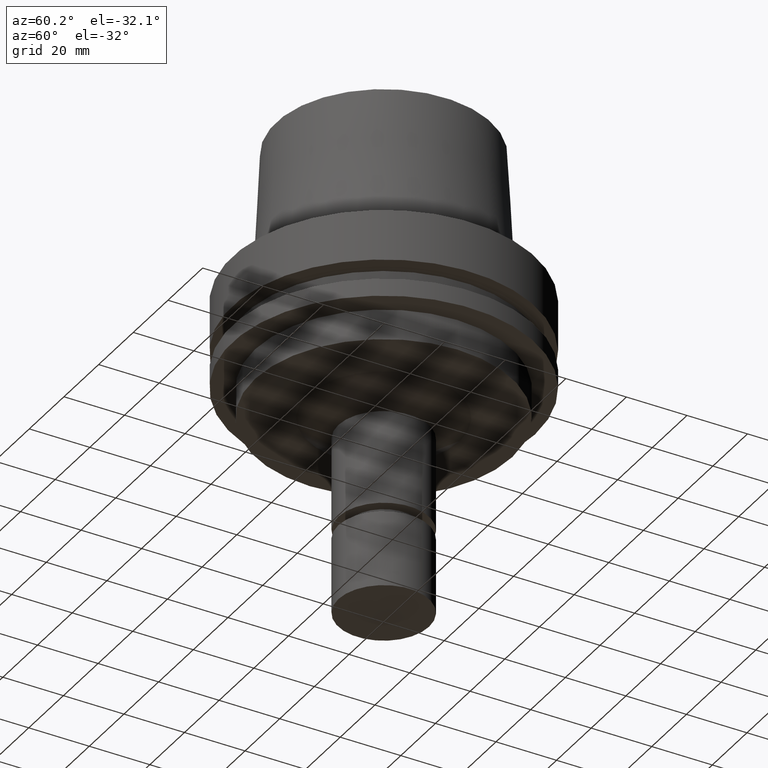
[diagram: clean part render]
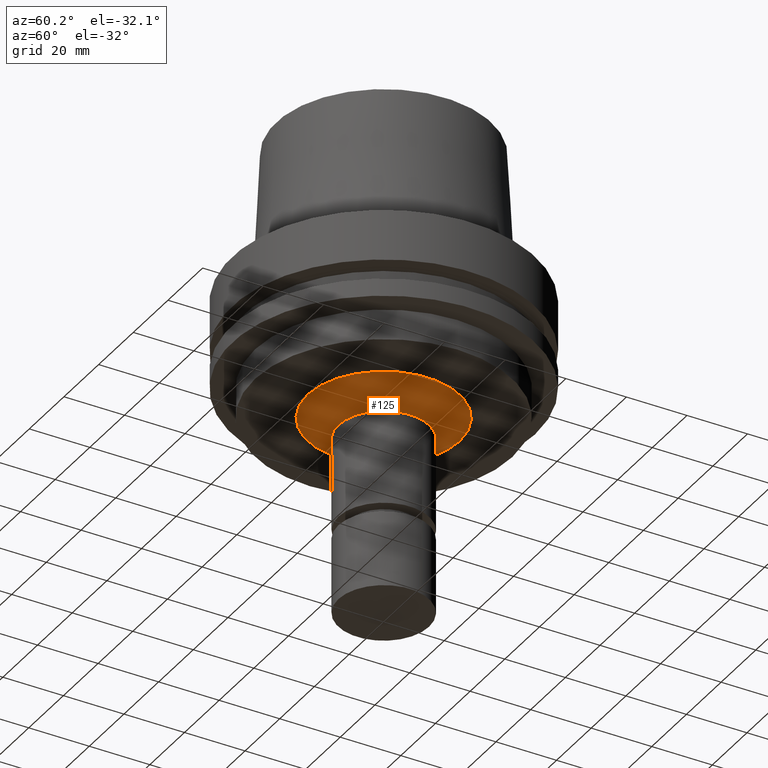
[diagram: same view with one face highlighted and labeled with its STEP entity id]
A machine part, auxiliary view. The second image highlights one B-rep face of the part: STEP entity #125.
In plain terms, the highlighted conical surface has half-angle 55.144 deg.
Its self-contained STEP definition (entity closure, byte-faithful):
#115=EDGE_CURVE('Unnamed[1]',#275,#275,#276,.T.);
#125=ADVANCED_FACE('Unnamed[1]',(#290,#291),#292,.T.);
#166=EDGE_CURVE('Unnamed[1]',#354,#354,#355,.T.);
#275=VERTEX_POINT('',#488);
#276=CIRCLE('',#489,25.1435726714537);
#290=FACE_BOUND('',#507,.T.);
#291=FACE_BOUND('',#508,.T.);
#292=CONICAL_SURFACE('',#509,20.0717863357269,0.962446965068553);
#354=VERTEX_POINT('',#586);
#355=CIRCLE('',#587,15.0);
#488=CARTESIAN_POINT('',(2.38806125833734E-015,25.1435726714537,-39.0));
#489=AXIS2_PLACEMENT_3D('',#716,#717,#718);
#507=EDGE_LOOP('',(#732));
#508=EDGE_LOOP('',(#733));
#509=AXIS2_PLACEMENT_3D('',#734,#735,#736);
#586=CARTESIAN_POINT('',(2.82064573751942E-015,15.0,-46.06464067));
#587=AXIS2_PLACEMENT_3D('',#803,#804,#805);
#716=CARTESIAN_POINT('',(2.38806125833734E-015,4.77612251667468E-015,-39.0));
#717=DIRECTION('',(6.12323399573677E-017,1.22464679914735E-016,-1.0));
#718=DIRECTION('',(-1.23259516440783E-032,1.0,1.22464679914735E-016));
#732=ORIENTED_EDGE('',*,*,#166,.F.);
#733=ORIENTED_EDGE('',*,*,#115,.T.);
#734=CARTESIAN_POINT('',(2.60435349792838E-015,5.20870699585676E-015,-42.532320335));
#735=DIRECTION('',(-6.12323399573677E-017,-1.22464679914735E-016,1.0));
#736=DIRECTION('',(-1.23259516440783E-032,1.0,1.22464679914735E-016));
#803=CARTESIAN_POINT('',(2.82064573751942E-015,5.64129147503885E-015,-46.06464067));
#804=DIRECTION('',(6.12323399573677E-017,1.22464679914735E-016,-1.0));
#805=DIRECTION('',(-1.23259516440783E-032,1.0,1.22464679914735E-016));